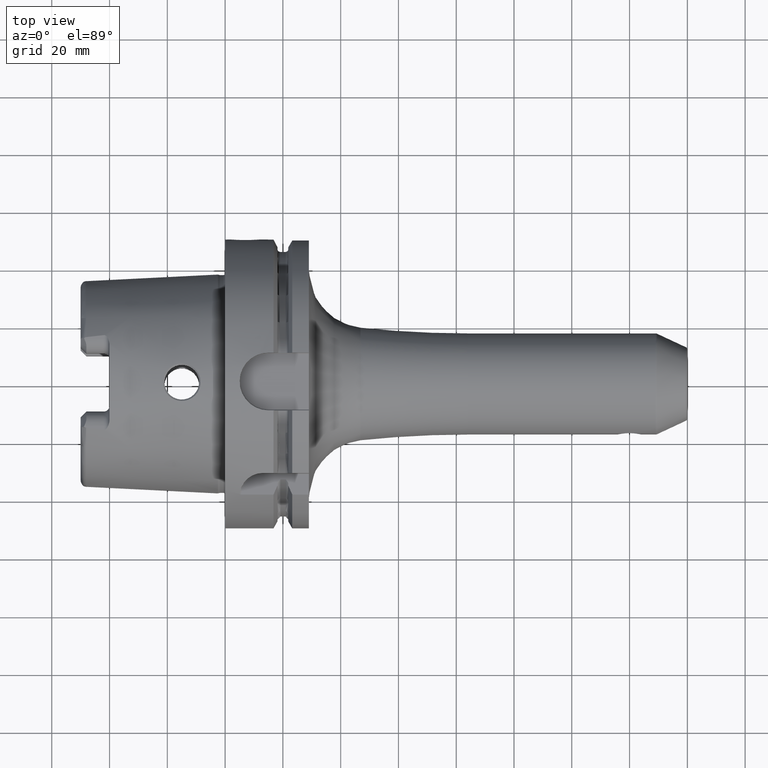
[diagram: clean part render]
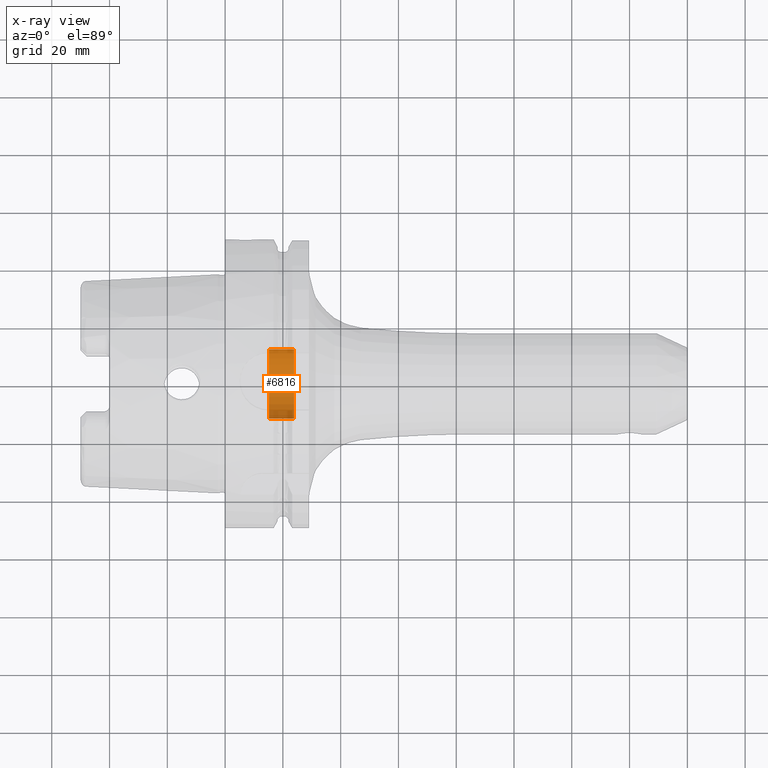
[diagram: x-ray — body ghosted, one internal face saturated and labeled with its STEP entity id]
A machine part, top view, then the same camera in x-ray: the body is ghosted and one INTERNAL B-rep face — a face not visible from any outside direction — is saturated and labeled: STEP entity #6816.
In plain terms, the highlighted cylindrical surface (edge-blend (fillet) strip) has radius 12 mm, axis along (1, 0, 0).
Its self-contained STEP definition (entity closure, byte-faithful):
#6729=CARTESIAN_POINT('',(1.51625E1,0.E0,0.E0));
#6730=DIRECTION('',(1.E0,0.E0,0.E0));
#6731=DIRECTION('',(0.E0,-1.E0,0.E0));
#6732=AXIS2_PLACEMENT_3D('',#6729,#6730,#6731);
#6734=CARTESIAN_POINT('',(2.385262794416E1,0.E0,0.E0));
#6735=DIRECTION('',(-1.E0,0.E0,0.E0));
#6736=DIRECTION('',(0.E0,1.E0,0.E0));
#6737=AXIS2_PLACEMENT_3D('',#6734,#6735,#6736);
#6754=DIRECTION('',(-1.E0,0.E0,0.E0));
#6755=VECTOR('',#6754,8.690127944163E0);
#6756=CARTESIAN_POINT('',(2.385262794416E1,-1.2E1,0.E0));
#6757=LINE('',#6756,#6755);
#6763=DIRECTION('',(-1.E0,0.E0,0.E0));
#6764=VECTOR('',#6763,8.690127944163E0);
#6765=CARTESIAN_POINT('',(2.385262794416E1,1.2E1,0.E0));
#6766=LINE('',#6765,#6764);
#6789=CARTESIAN_POINT('',(1.51625E1,-1.2E1,0.E0));
#6790=CARTESIAN_POINT('',(1.51625E1,1.2E1,0.E0));
#6791=VERTEX_POINT('',#6789);
#6792=VERTEX_POINT('',#6790);
#6793=CARTESIAN_POINT('',(2.385262794416E1,-1.2E1,0.E0));
#6794=CARTESIAN_POINT('',(2.385262794416E1,1.2E1,0.E0));
#6795=VERTEX_POINT('',#6793);
#6796=VERTEX_POINT('',#6794);
#6801=CARTESIAN_POINT('',(-4.847666062263E0,0.E0,0.E0));
#6802=DIRECTION('',(1.E0,0.E0,0.E0));
#6803=DIRECTION('',(0.E0,-1.E0,0.E0));
#6804=AXIS2_PLACEMENT_3D('',#6801,#6802,#6803);
#6805=CYLINDRICAL_SURFACE('',#6804,1.2E1);
#6807=ORIENTED_EDGE('',*,*,#6806,.T.);
#6809=ORIENTED_EDGE('',*,*,#6808,.F.);
#6811=ORIENTED_EDGE('',*,*,#6810,.T.);
#6813=ORIENTED_EDGE('',*,*,#6812,.T.);
#6814=EDGE_LOOP('',(#6807,#6809,#6811,#6813));
#6815=FACE_OUTER_BOUND('',#6814,.F.);
#6816=ADVANCED_FACE('',(#6815),#6805,.F.);
#6733=CIRCLE('',#6732,1.2E1);
#6738=CIRCLE('',#6737,1.2E1);
#6806=EDGE_CURVE('',#6791,#6792,#6733,.T.);
#6808=EDGE_CURVE('',#6796,#6792,#6766,.T.);
#6810=EDGE_CURVE('',#6796,#6795,#6738,.T.);
#6812=EDGE_CURVE('',#6795,#6791,#6757,.T.);